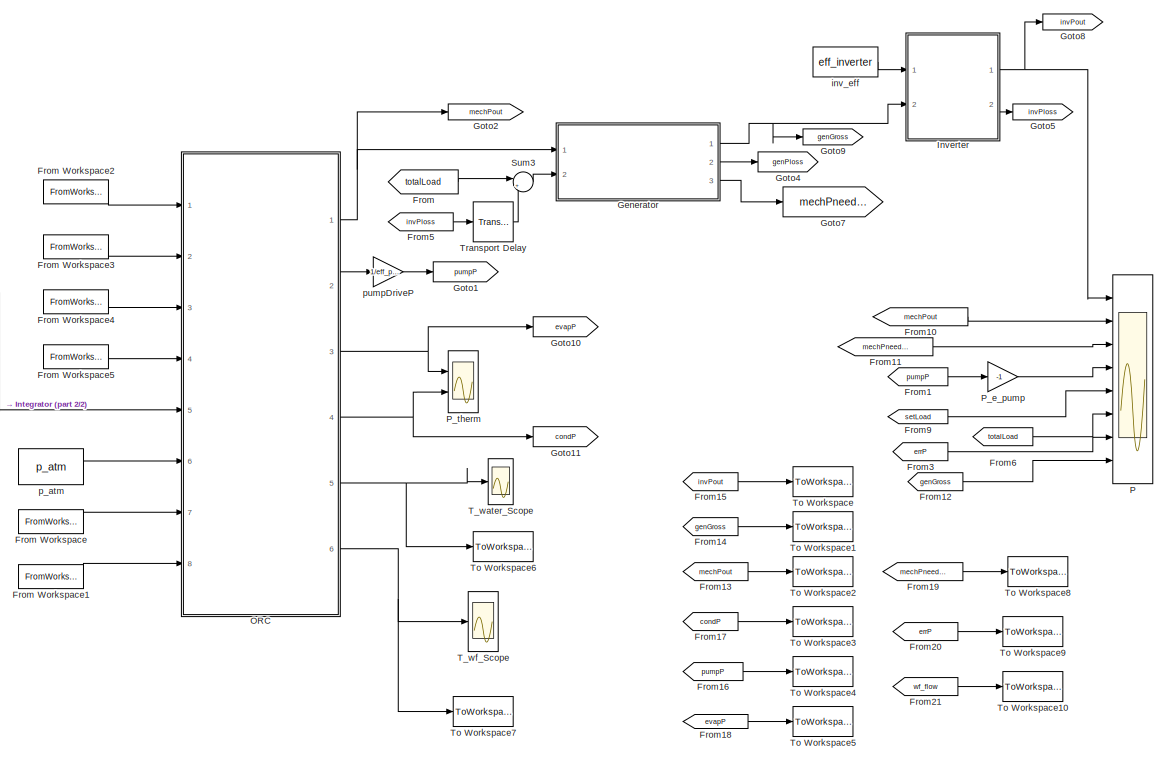
[diagram: root canvas - part 1/2, right side, full height]
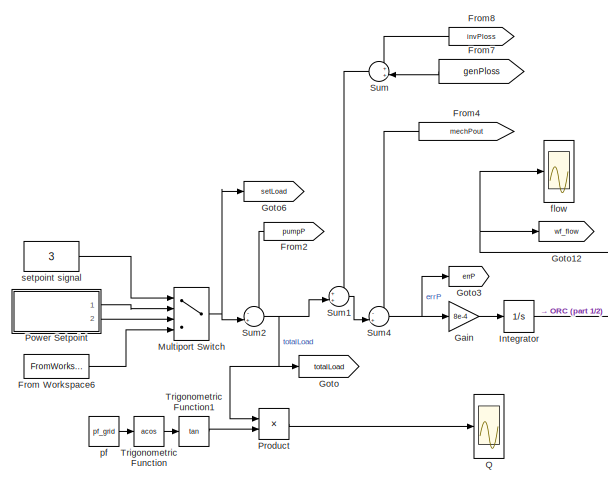
[diagram: root canvas - part 2/2, middle left region]
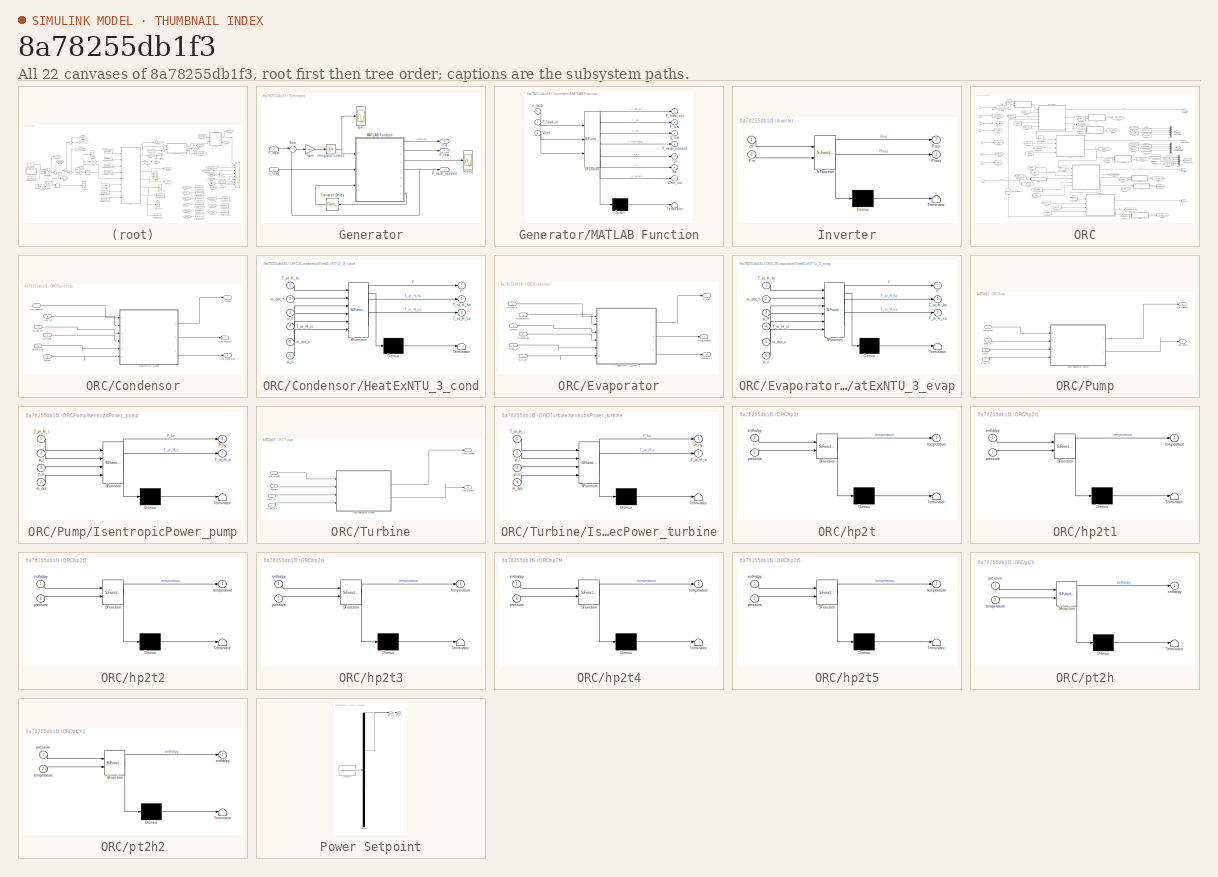
[diagram: thumbnail index - all 22 canvases of the model, root first then tree order]
MODEL slx_8a78255db1f3
KIND model
CONFIG AbsTol = auto
CONFIG EnableMultiTasking = off
CONFIG FixedStep = .1
CONFIG MaxStep = auto
CONFIG MinStep = auto
CONFIG RelTol = 1e-4
CONFIG SampleTimeConstraint = Unconstrained
CONFIG Solver = ode3
CONFIG SolverName = ode3
CONFIG StartTime = 0.0
CONFIG StopTime = 45
BLOCK [From] From
  GotoTag = totalLoad
BLOCK [FromWorkspace] From Workspace
  SampleTime = 0
  VariableName = p_hi
  ZeroCross = on
BLOCK [FromWorkspace] From Workspace1
  SampleTime = 0
  VariableName = p_low
  ZeroCross = on
BLOCK [FromWorkspace] From Workspace2
  SampleTime = 0
  VariableName = Tin_source
  ZeroCross = on
BLOCK [FromWorkspace] From Workspace3
  SampleTime = 0
  VariableName = Tin_sink
  ZeroCross = on
BLOCK [FromWorkspace] From Workspace4
  SampleTime = 0
  VariableName = m_dot_source
  ZeroCross = on
BLOCK [FromWorkspace] From Workspace5
  SampleTime = 0
  VariableName = m_dot_sink
  ZeroCross = on
BLOCK [FromWorkspace] From Workspace6
  SampleTime = 0
  VariableName = P_setpoint
  ZeroCross = on
BLOCK [From] From1
  GotoTag = pumpP
BLOCK [From] From10
  GotoTag = mechPout
BLOCK [From] From11
  GotoTag = mechPneeded
BLOCK [From] From12
  GotoTag = genGross
BLOCK [From] From13
  GotoTag = mechPout
BLOCK [From] From14
  GotoTag = genGross
BLOCK [From] From15
  GotoTag = invPout
BLOCK [From] From16
  GotoTag = pumpP
BLOCK [From] From17
  GotoTag = condP
BLOCK [From] From18
  GotoTag = evapP
BLOCK [From] From19
  GotoTag = mechPneeded
BLOCK [From] From2
  GotoTag = pumpP
BLOCK [From] From20
  GotoTag = errP
BLOCK [From] From21
  GotoTag = wf_flow
BLOCK [From] From3
  GotoTag = errP
BLOCK [From] From4
  GotoTag = mechPout
BLOCK [From] From5
  GotoTag = invPloss
BLOCK [From] From6
  GotoTag = totalLoad
BLOCK [From] From7
  GotoTag = genPloss
BLOCK [From] From8
  GotoTag = invPloss
BLOCK [From] From9
  GotoTag = setLoad
BLOCK [Gain] Gain
  Gain = 8e-4
  OutDataTypeStr = Inherit: Inherit via internal rule
  ParamDataTypeStr = Inherit: Inherit via internal rule
  SaturateOnIntegerOverflow = off
BLOCK [SubSystem] Generator
  Ports = [2, 3]
  RequestExecContextInheritance = off
BLOCK [Gain] Generator/Gain
  Gain = .005
  OutDataTypeStr = Inherit: Inherit via internal rule
  ParamDataTypeStr = Inherit: Inherit via internal rule
  SaturateOnIntegerOverflow = off
BLOCK [Integrator] Generator/Integrator Limited
  InitialCondition = n_mech_init
  LimitOutput = on
  LowerSaturationLimit = n_mech_min
  Ports = [1, 1]
  UpperSaturationLimit = n_mech_max
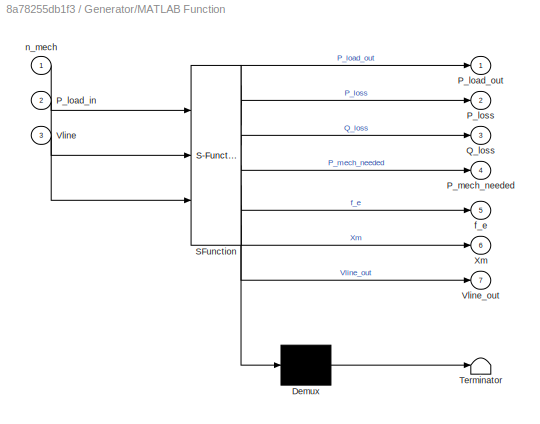
BLOCK [SubSystem] Generator/MATLAB Function
  ErrorFcn = Stateflow.Translate.translate
  PermitHierarchicalResolution = ExplicitOnly
  Ports = [3, 7]
  RequestExecContextInheritance = off
  SFBlockType = MATLAB Function
BLOCK [Demux] Generator/MATLAB Function/ Demux 
  Outputs = 1
  Ports = [1, 1]
BLOCK [S-Function] Generator/MATLAB Function/ SFunction 
  EnableBusSupport = on
  FunctionName = sf_sfun
  Parameters = Cx,K_b,K_w,L1,L2,R1,R2,f_rated,magCurveV,magCurveX,poles
  PortCounts = [3 8]
  Ports = [3, 8]
  SFcnIsStateOwnerBlock = off
  SFunctionDeploymentMode = off
  Tag = Stateflow S-Function ORC_test_simu_unregSCIG 16
BLOCK [Terminator] Generator/MATLAB Function/ Terminator 
BLOCK [Inport] Generator/MATLAB Function/P_load_in
  IconDisplay = Port number
  Port = 2
BLOCK [Outport] Generator/MATLAB Function/P_load_out
  IconDisplay = Port number
BLOCK [Outport] Generator/MATLAB Function/P_loss
  IconDisplay = Port number
  Port = 2
BLOCK [Outport] Generator/MATLAB Function/P_mech_needed
  IconDisplay = Port number
  Port = 4
BLOCK [Outport] Generator/MATLAB Function/Q_loss
  IconDisplay = Port number
  Port = 3
BLOCK [Inport] Generator/MATLAB Function/Vline
  IconDisplay = Port number
  Port = 3
BLOCK [Outport] Generator/MATLAB Function/Vline_out
  IconDisplay = Port number
  Port = 7
BLOCK [Outport] Generator/MATLAB Function/Xm
  IconDisplay = Port number
  Port = 6
BLOCK [Outport] Generator/MATLAB Function/f_e
  IconDisplay = Port number
  Port = 5
BLOCK [Inport] Generator/MATLAB Function/n_mech
  IconDisplay = Port number
BLOCK [Outport] Generator/P_e
  IconDisplay = Port number
BLOCK [Inport] Generator/P_load
  IconDisplay = Port number
  Port = 2
BLOCK [Outport] Generator/P_loss
  IconDisplay = Port number
  Port = 2
BLOCK [Inport] Generator/P_mech
  IconDisplay = Port number
BLOCK [Outport] Generator/P_mech_needed
  IconDisplay = Port number
  Port = 3
BLOCK [Scope] Generator/SCIG Q
  Floating = off
  NumInputPorts = 1
  Ports = [1]
  ScopeSpecificationString = Simulink.scopes.TimeScopeBlockCfg('CurrentConfiguration', extmgr.ConfigurationSet(extmgr.Configuration('Core','General UI',true),extmgr.Configuration('Core','Source UI',true),extmgr.Configuration('Sources','WiredSimulink',true,'DataLoggingVariableName','ScopeData1'),extmgr.Configuration('Visuals','Time Domain',true,'SerializedDisplays',{struct('MinYLimReal','17992.15223','MaxYLimReal','38222.03421...<+1839ch>
BLOCK [Sum] Generator/Sum
  IconShape = round
  InputSameDT = off
  Inputs = |-+
  OutDataTypeStr = Inherit: Inherit via internal rule
  Ports = [2, 1]
  SaturateOnIntegerOverflow = off
BLOCK [TransportDelay] Generator/Transport Delay
  DelayTime = .01
  InitialOutput = Vline_rated
  Ports = [1, 1]
BLOCK [Scope] Generator/rpm
  Floating = off
  NumInputPorts = 1
  Ports = [1]
  ScopeSpecificationString = Simulink.scopes.TimeScopeBlockCfg('CurrentConfiguration', extmgr.ConfigurationSet(extmgr.Configuration('Core','General UI',true),extmgr.Configuration('Core','Source UI',true),extmgr.Configuration('Sources','WiredSimulink',true,'DataLoggingVariableName','ScopeData1'),extmgr.Configuration('Visuals','Time Domain',true,'SerializedDisplays',{struct('MinYLimReal','1790.98667','MaxYLimReal','1881.11993',...<+1802ch>
BLOCK [Goto] Goto
  GotoTag = totalLoad
BLOCK [Goto] Goto1
  GotoTag = pumpP
BLOCK [Goto] Goto10
  GotoTag = evapP
BLOCK [Goto] Goto11
  GotoTag = condP
BLOCK [Goto] Goto12
  GotoTag = wf_flow
BLOCK [Goto] Goto2
  GotoTag = mechPout
BLOCK [Goto] Goto3
  GotoTag = errP
BLOCK [Goto] Goto4
  GotoTag = genPloss
BLOCK [Goto] Goto5
  GotoTag = invPloss
BLOCK [Goto] Goto6
  GotoTag = setLoad
BLOCK [Goto] Goto7
  GotoTag = mechPneeded
BLOCK [Goto] Goto8
  GotoTag = invPout
BLOCK [Goto] Goto9
  GotoTag = genGross
BLOCK [Integrator] Integrator
  InitialCondition = m_dot_wf_init
  LimitOutput = on
  LowerSaturationLimit = 0
  Ports = [1, 1]
  UpperSaturationLimit = m_dot_wf_max
BLOCK [SubSystem] Inverter
  ErrorFcn = Stateflow.Translate.translate
  PermitHierarchicalResolution = ExplicitOnly
  Ports = [2, 2]
  RequestExecContextInheritance = off
  SFBlockType = MATLAB Function
  TreatAsAtomicUnit = on
BLOCK [Demux] Inverter/ Demux 
  Outputs = 1
  Ports = [1, 1]
BLOCK [S-Function] Inverter/ SFunction 
  EnableBusSupport = on
  FunctionName = sf_sfun
  PortCounts = [2 3]
  Ports = [2, 3]
  SFcnIsStateOwnerBlock = off
  SFunctionDeploymentMode = off
  Tag = Stateflow S-Function ORC_test_simu_unregSCIG 14
BLOCK [Terminator] Inverter/ Terminator 
BLOCK [Inport] Inverter/Pin
  IconDisplay = Port number
  Port = 2
BLOCK [Outport] Inverter/Ploss
  IconDisplay = Port number
  Port = 2
BLOCK [Outport] Inverter/Pout
  IconDisplay = Port number
BLOCK [Inport] Inverter/eff
  IconDisplay = Port number
BLOCK [MultiPortSwitch] Multiport Switch
  InputSameDT = off
  Ports = [4, 1]
  SaturateOnIntegerOverflow = off
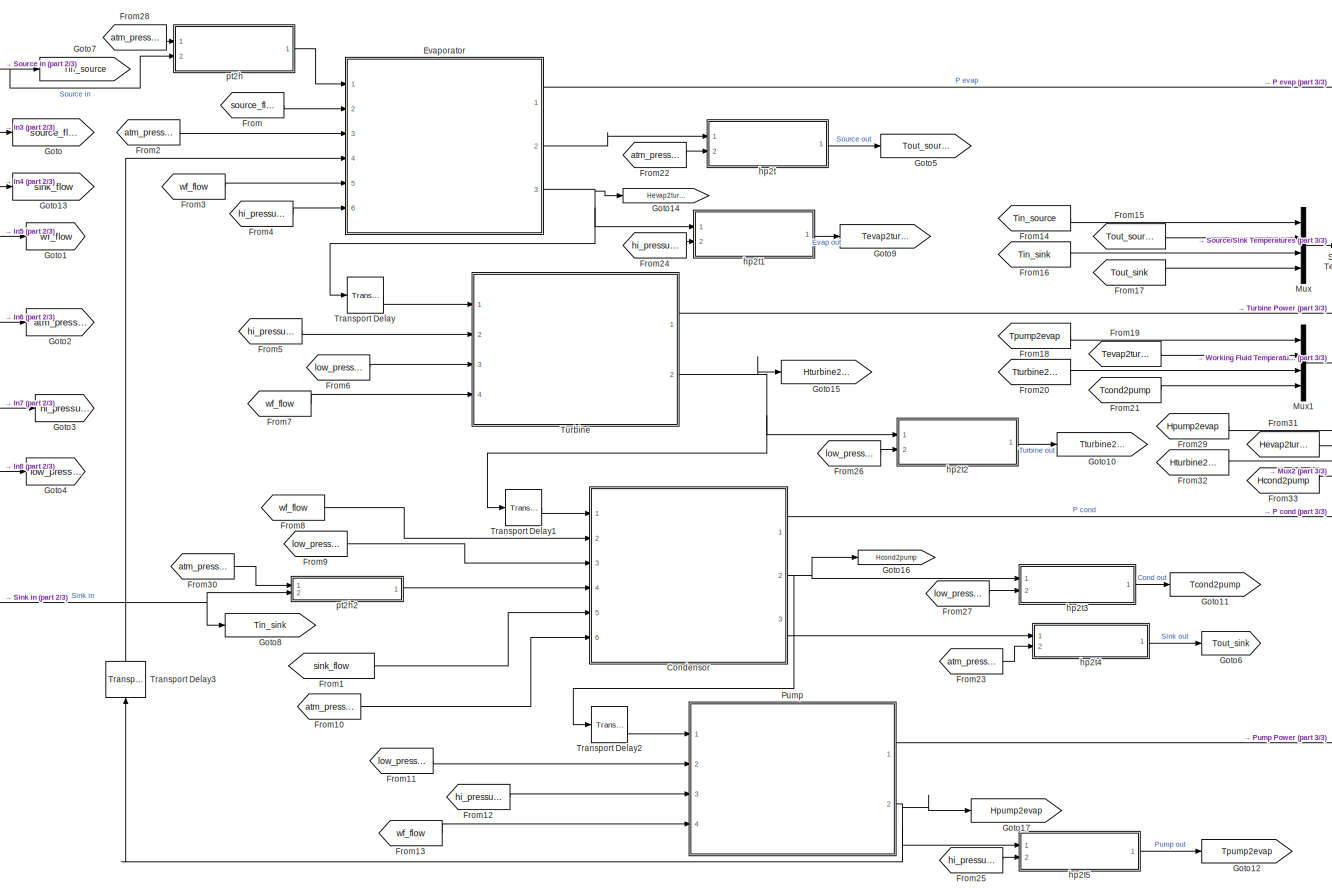
[diagram: ORC - part 1/3, most of the canvas]
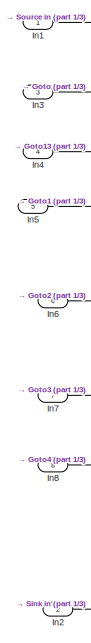
[diagram: ORC - part 2/3, middle left region]
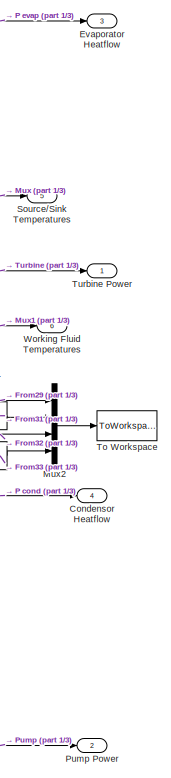
[diagram: ORC - part 3/3, right side, full height]
BLOCK [SubSystem] ORC
  Ports = [8, 6]
  RequestExecContextInheritance = off
BLOCK [SubSystem] ORC/Condensor
  Ports = [6, 3]
  RequestExecContextInheritance = off
BLOCK [Outport] ORC/Condensor Heatflow
  IconDisplay = Port number
  Port = 4
BLOCK [SubSystem] ORC/Condensor/HeatExNTU_3_cond
  Description = %HeatExNTU Summary \n%   This function calculates flow and outlet temperatures of a heat exchanger\n%   using the Number of Transfer Units (NTU) method as described in\n%   Fundementals of Heat and Mass Transfer by F. P. Incropera, D. P.\n%   DeWitt, T. L. Bergman & A. S. Lavine. The method can be used when only\n%   the inlet tempertures are known as opposed to inlet and outlet\n%   temperatures.\n%\n%  ...<+3098ch>
  ErrorFcn = Stateflow.Translate.translate
  PermitHierarchicalResolution = ExplicitOnly
  Ports = [6, 3]
  RequestExecContextInheritance = off
  SFBlockType = MATLAB Function
  TreatAsAtomicUnit = on
BLOCK [Demux] ORC/Condensor/HeatExNTU_3_cond/ Demux 
  Outputs = 1
  Ports = [1, 1]
BLOCK [S-Function] ORC/Condensor/HeatExNTU_3_cond/ SFunction 
  EnableBusSupport = on
  FunctionName = sf_sfun
  Parameters = A,HeatExType,T_or_H,U,fluid_c,fluid_h
  PortCounts = [6 4]
  Ports = [6, 4]
  SFcnIsStateOwnerBlock = off
  SFunctionDeploymentMode = off
  Tag = Stateflow S-Function ORC_test_simu_unregSCIG 3
BLOCK [Terminator] ORC/Condensor/HeatExNTU_3_cond/ Terminator 
BLOCK [Outport] ORC/Condensor/HeatExNTU_3_cond/P
  IconDisplay = Port number
BLOCK [Inport] ORC/Condensor/HeatExNTU_3_cond/T_or_H_ci
  IconDisplay = Port number
  Port = 4
BLOCK [Outport] ORC/Condensor/HeatExNTU_3_cond/T_or_H_co
  IconDisplay = Port number
  Port = 3
BLOCK [Inport] ORC/Condensor/HeatExNTU_3_cond/T_or_H_hi
  IconDisplay = Port number
BLOCK [Outport] ORC/Condensor/HeatExNTU_3_cond/T_or_H_ho
  IconDisplay = Port number
  Port = 2
BLOCK [Inport] ORC/Condensor/HeatExNTU_3_cond/m_dot_c
  IconDisplay = Port number
  Port = 5
BLOCK [Inport] ORC/Condensor/HeatExNTU_3_cond/m_dot_h
  IconDisplay = Port number
  Port = 2
BLOCK [Inport] ORC/Condensor/HeatExNTU_3_cond/p_c
  IconDisplay = Port number
  Port = 6
BLOCK [Inport] ORC/Condensor/HeatExNTU_3_cond/p_h
  IconDisplay = Port number
  Port = 3
BLOCK [Inport] ORC/Condensor/Hin_cond_wf
  IconDisplay = Port number
BLOCK [Inport] ORC/Condensor/Hin_sink
  IconDisplay = Port number
  Port = 4
BLOCK [Outport] ORC/Condensor/Hout_cond_sink
  IconDisplay = Port number
  Port = 3
BLOCK [Outport] ORC/Condensor/Hout_cond_wf
  IconDisplay = Port number
  Port = 2
BLOCK [Outport] ORC/Condensor/P_cond
  IconDisplay = Port number
BLOCK [Inport] ORC/Condensor/m_dot_sink
  IconDisplay = Port number
  Port = 5
BLOCK [Inport] ORC/Condensor/m_dot_wf
  IconDisplay = Port number
  Port = 2
BLOCK [Inport] ORC/Condensor/p_low_wf
  IconDisplay = Port number
  Port = 3
BLOCK [Inport] ORC/Condensor/p_sink
  IconDisplay = Port number
  Port = 6
BLOCK [SubSystem] ORC/Evaporator
  Ports = [6, 3]
  RequestExecContextInheritance = off
BLOCK [Outport] ORC/Evaporator Heatflow
  IconDisplay = Port number
  Port = 3
BLOCK [SubSystem] ORC/Evaporator/HeatExNTU_3_evap
  Description = %HeatExNTU Summary \n%   This function calculates flow and outlet temperatures of a heat exchanger\n%   using the Number of Transfer Units (NTU) method as described in\n%   Fundementals of Heat and Mass Transfer by F. P. Incropera, D. P.\n%   DeWitt, T. L. Bergman & A. S. Lavine. The method can be used when only\n%   the inlet tempertures are known as opposed to inlet and outlet\n%   temperatures.\n%\n%  ...<+3098ch>
  ErrorFcn = Stateflow.Translate.translate
  PermitHierarchicalResolution = ExplicitOnly
  Ports = [6, 3]
  RequestExecContextInheritance = off
  SFBlockType = MATLAB Function
  TreatAsAtomicUnit = on
BLOCK [Demux] ORC/Evaporator/HeatExNTU_3_evap/ Demux 
  Outputs = 1
  Ports = [1, 1]
BLOCK [S-Function] ORC/Evaporator/HeatExNTU_3_evap/ SFunction 
  EnableBusSupport = on
  FunctionName = sf_sfun
  Parameters = A,HeatExType,T_or_H,U,fluid_c,fluid_h
  PortCounts = [6 4]
  Ports = [6, 4]
  SFcnIsStateOwnerBlock = off
  SFunctionDeploymentMode = off
  Tag = Stateflow S-Function ORC_test_simu_unregSCIG 2
BLOCK [Terminator] ORC/Evaporator/HeatExNTU_3_evap/ Terminator 
BLOCK [Outport] ORC/Evaporator/HeatExNTU_3_evap/P
  IconDisplay = Port number
BLOCK [Inport] ORC/Evaporator/HeatExNTU_3_evap/T_or_H_ci
  IconDisplay = Port number
  Port = 4
BLOCK [Outport] ORC/Evaporator/HeatExNTU_3_evap/T_or_H_co
  IconDisplay = Port number
  Port = 3
BLOCK [Inport] ORC/Evaporator/HeatExNTU_3_evap/T_or_H_hi
  IconDisplay = Port number
BLOCK [Outport] ORC/Evaporator/HeatExNTU_3_evap/T_or_H_ho
  IconDisplay = Port number
  Port = 2
BLOCK [Inport] ORC/Evaporator/HeatExNTU_3_evap/m_dot_c
  IconDisplay = Port number
  Port = 5
BLOCK [Inport] ORC/Evaporator/HeatExNTU_3_evap/m_dot_h
  IconDisplay = Port number
  Port = 2
BLOCK [Inport] ORC/Evaporator/HeatExNTU_3_evap/p_c
  IconDisplay = Port number
  Port = 6
BLOCK [Inport] ORC/Evaporator/HeatExNTU_3_evap/p_h
  IconDisplay = Port number
  Port = 3
BLOCK [Outport] ORC/Evaporator/Hevap_source
  IconDisplay = Port number
  Port = 2
BLOCK [Outport] ORC/Evaporator/Hevap_wf
  IconDisplay = Port number
  Port = 3
BLOCK [Inport] ORC/Evaporator/Hin_evap_wf
  IconDisplay = Port number
  Port = 4
BLOCK [Inport] ORC/Evaporator/Hin_source
  IconDisplay = Port number
BLOCK [Outport] ORC/Evaporator/P_evap
  IconDisplay = Port number
BLOCK [Inport] ORC/Evaporator/m_dot_source
  IconDisplay = Port number
  Port = 2
BLOCK [Inport] ORC/Evaporator/m_dot_wf
  IconDisplay = Port number
  Port = 5
BLOCK [Inport] ORC/Evaporator/p_hi_wf
  IconDisplay = Port number
  Port = 6
BLOCK [Inport] ORC/Evaporator/p_source
  IconDisplay = Port number
  Port = 3
BLOCK [From] ORC/From
  GotoTag = source_flow
BLOCK [From] ORC/From1
  GotoTag = sink_flow
BLOCK [From] ORC/From10
  GotoTag = atm_pressure
BLOCK [From] ORC/From11
  GotoTag = low_pressure
BLOCK [From] ORC/From12
  GotoTag = hi_pressure
BLOCK [From] ORC/From13
  GotoTag = wf_flow
BLOCK [From] ORC/From14
  GotoTag = Tin_source
BLOCK [From] ORC/From15
  GotoTag = Tout_source
BLOCK [From] ORC/From16
  GotoTag = Tin_sink
BLOCK [From] ORC/From17
  GotoTag = Tout_sink
BLOCK [From] ORC/From18
  GotoTag = Tpump2evap
BLOCK [From] ORC/From19
  GotoTag = Tevap2turbine
BLOCK [From] ORC/From2
  GotoTag = atm_pressure
BLOCK [From] ORC/From20
  GotoTag = Tturbine2cond
BLOCK [From] ORC/From21
  GotoTag = Tcond2pump
BLOCK [From] ORC/From22
  GotoTag = atm_pressure
BLOCK [From] ORC/From23
  GotoTag = atm_pressure
BLOCK [From] ORC/From24
  GotoTag = hi_pressure
BLOCK [From] ORC/From25
  GotoTag = hi_pressure
BLOCK [From] ORC/From26
  GotoTag = low_pressure
BLOCK [From] ORC/From27
  GotoTag = low_pressure
BLOCK [From] ORC/From28
  GotoTag = atm_pressure
BLOCK [From] ORC/From29
  GotoTag = Hpump2evap
BLOCK [From] ORC/From3
  GotoTag = wf_flow
BLOCK [From] ORC/From30
  GotoTag = atm_pressure
BLOCK [From] ORC/From31
  GotoTag = Hevap2turbine
BLOCK [From] ORC/From32
  GotoTag = Hturbine2cond
BLOCK [From] ORC/From33
  GotoTag = Hcond2pump
BLOCK [From] ORC/From4
  GotoTag = hi_pressure
BLOCK [From] ORC/From5
  GotoTag = hi_pressure
BLOCK [From] ORC/From6
  GotoTag = low_pressure
BLOCK [From] ORC/From7
  GotoTag = wf_flow
BLOCK [From] ORC/From8
  GotoTag = wf_flow
BLOCK [From] ORC/From9
  GotoTag = low_pressure
BLOCK [Goto] ORC/Goto
  GotoTag = source_flow
BLOCK [Goto] ORC/Goto1
  GotoTag = wf_flow
BLOCK [Goto] ORC/Goto10
  GotoTag = Tturbine2cond
BLOCK [Goto] ORC/Goto11
  GotoTag = Tcond2pump
BLOCK [Goto] ORC/Goto12
  GotoTag = Tpump2evap
BLOCK [Goto] ORC/Goto13
  GotoTag = sink_flow
BLOCK [Goto] ORC/Goto14
  GotoTag = Hevap2turbine
BLOCK [Goto] ORC/Goto15
  GotoTag = Hturbine2cond
BLOCK [Goto] ORC/Goto16
  GotoTag = Hcond2pump
BLOCK [Goto] ORC/Goto17
  GotoTag = Hpump2evap
BLOCK [Goto] ORC/Goto2
  GotoTag = atm_pressure
BLOCK [Goto] ORC/Goto3
  GotoTag = hi_pressure
BLOCK [Goto] ORC/Goto4
  GotoTag = low_pressure
BLOCK [Goto] ORC/Goto5
  GotoTag = Tout_source
BLOCK [Goto] ORC/Goto6
  GotoTag = Tout_sink
BLOCK [Goto] ORC/Goto7
  GotoTag = Tin_source
BLOCK [Goto] ORC/Goto8
  GotoTag = Tin_sink
BLOCK [Goto] ORC/Goto9
  GotoTag = Tevap2turbine
BLOCK [Inport] ORC/In1
  IconDisplay = Port number
BLOCK [Inport] ORC/In2
  IconDisplay = Port number
  Port = 2
BLOCK [Inport] ORC/In3
  IconDisplay = Port number
  Port = 3
BLOCK [Inport] ORC/In4
  IconDisplay = Port number
  Port = 4
BLOCK [Inport] ORC/In5
  IconDisplay = Port number
  Port = 5
BLOCK [Inport] ORC/In6
  IconDisplay = Port number
  Port = 6
BLOCK [Inport] ORC/In7
  IconDisplay = Port number
  Port = 7
BLOCK [Inport] ORC/In8
  IconDisplay = Port number
  Port = 8
BLOCK [Mux] ORC/Mux
  DisplayOption = bar
  Ports = [4, 1]
BLOCK [Mux] ORC/Mux1
  DisplayOption = bar
  Ports = [4, 1]
BLOCK [Mux] ORC/Mux2
  DisplayOption = bar
  Ports = [4, 1]
BLOCK [SubSystem] ORC/Pump
  Ports = [4, 2]
  RequestExecContextInheritance = off
BLOCK [Outport] ORC/Pump Power
  IconDisplay = Port number
  Port = 2
BLOCK [Inport] ORC/Pump/Hin_pump
  IconDisplay = Port number
BLOCK [Outport] ORC/Pump/Hout_pump
  IconDisplay = Port number
  Port = 2
BLOCK [SubSystem] ORC/Pump/IsentropicPower_pump
  ErrorFcn = Stateflow.Translate.translate
  PermitHierarchicalResolution = ExplicitOnly
  Ports = [4, 2]
  RequestExecContextInheritance = off
  SFBlockType = MATLAB Function
  TreatAsAtomicUnit = on
BLOCK [Demux] ORC/Pump/IsentropicPower_pump/ Demux 
  Outputs = 1
  Ports = [1, 1]
BLOCK [S-Function] ORC/Pump/IsentropicPower_pump/ SFunction 
  EnableBusSupport = on
  FunctionName = sf_sfun
  Parameters = T_or_H,fluid,isen_eff
  PortCounts = [4 3]
  Ports = [4, 3]
  SFcnIsStateOwnerBlock = off
  SFunctionDeploymentMode = off
  Tag = Stateflow S-Function ORC_test_simu_unregSCIG 4
BLOCK [Terminator] ORC/Pump/IsentropicPower_pump/ Terminator 
BLOCK [Outport] ORC/Pump/IsentropicPower_pump/P_hy
  IconDisplay = Port number
BLOCK [Inport] ORC/Pump/IsentropicPower_pump/T_or_H_i
  IconDisplay = Port number
BLOCK [Outport] ORC/Pump/IsentropicPower_pump/T_or_H_o
  IconDisplay = Port number
  Port = 2
BLOCK [Inport] ORC/Pump/IsentropicPower_pump/m_dot
  IconDisplay = Port number
  Port = 4
BLOCK [Inport] ORC/Pump/IsentropicPower_pump/p_i
  IconDisplay = Port number
  Port = 2
BLOCK [Inport] ORC/Pump/IsentropicPower_pump/p_o
  IconDisplay = Port number
  Port = 3
BLOCK [Outport] ORC/Pump/P_hyd_pump
  IconDisplay = Port number
BLOCK [Inport] ORC/Pump/m_dot_wf
  IconDisplay = Port number
  Port = 4
BLOCK [Inport] ORC/Pump/p_hi_wf
  IconDisplay = Port number
  Port = 3
BLOCK [Inport] ORC/Pump/pi_low_wf
  IconDisplay = Port number
  Port = 2
BLOCK [Outport] ORC/Source//Sink Temperatures
  IconDisplay = Port number
  Port = 5
BLOCK [ToWorkspace] ORC/To Workspace
  FixptAsFi = on
  MaxDataPoints = inf
  Ports = [1]
  SampleTime = -1
  Save2DSignal = 3-D array (concatenate along third dimension)
  SaveFormat = Timeseries
  VariableName = H_wf
BLOCK [TransportDelay] ORC/Transport Delay
  Commented = through
  DelayTime = .01
  InitialOutput = 2.3e+05
  Ports = [1, 1]
BLOCK [TransportDelay] ORC/Transport Delay1
  Commented = through
  DelayTime = .01
  InitialOutput = 2.3e+05
  Ports = [1, 1]
BLOCK [TransportDelay] ORC/Transport Delay2
  Commented = through
  DelayTime = .01
  InitialOutput = 2.3e+05
  Ports = [1, 1]
BLOCK [TransportDelay] ORC/Transport Delay3
  DelayTime = .01
  InitialOutput = H_wf_init
  Ports = [1, 1]
  TransDelayFeedthrough = on
BLOCK [SubSystem] ORC/Turbine
  Ports = [4, 2]
  RequestExecContextInheritance = off
BLOCK [Outport] ORC/Turbine Power
  IconDisplay = Port number
BLOCK [Inport] ORC/Turbine/Hin_turbine
  IconDisplay = Port number
BLOCK [Outport] ORC/Turbine/Hout_turbine
  IconDisplay = Port number
  Port = 2
BLOCK [SubSystem] ORC/Turbine/IsentropicPower_turbine
  ErrorFcn = Stateflow.Translate.translate
  PermitHierarchicalResolution = ExplicitOnly
  Ports = [4, 2]
  RequestExecContextInheritance = off
  SFBlockType = MATLAB Function
  TreatAsAtomicUnit = on
BLOCK [Demux] ORC/Turbine/IsentropicPower_turbine/ Demux 
  Outputs = 1
  Ports = [1, 1]
BLOCK [S-Function] ORC/Turbine/IsentropicPower_turbine/ SFunction 
  EnableBusSupport = on
  FunctionName = sf_sfun
  Parameters = T_or_H,fluid,isen_eff
  PortCounts = [4 3]
  Ports = [4, 3]
  SFcnIsStateOwnerBlock = off
  SFunctionDeploymentMode = off
  Tag = Stateflow S-Function ORC_test_simu_unregSCIG 1
BLOCK [Terminator] ORC/Turbine/IsentropicPower_turbine/ Terminator 
BLOCK [Outport] ORC/Turbine/IsentropicPower_turbine/P_hy
  IconDisplay = Port number
BLOCK [Inport] ORC/Turbine/IsentropicPower_turbine/T_or_H_i
  IconDisplay = Port number
BLOCK [Outport] ORC/Turbine/IsentropicPower_turbine/T_or_H_o
  IconDisplay = Port number
  Port = 2
BLOCK [Inport] ORC/Turbine/IsentropicPower_turbine/m_dot
  IconDisplay = Port number
  Port = 4
BLOCK [Inport] ORC/Turbine/IsentropicPower_turbine/p_i
  IconDisplay = Port number
  Port = 2
BLOCK [Inport] ORC/Turbine/IsentropicPower_turbine/p_o
  IconDisplay = Port number
  Port = 3
BLOCK [Outport] ORC/Turbine/P_hyd_turbine
  IconDisplay = Port number
BLOCK [Inport] ORC/Turbine/m_dot_wf
  IconDisplay = Port number
  Port = 4
BLOCK [Inport] ORC/Turbine/p_low_wf
  IconDisplay = Port number
  Port = 3
BLOCK [Inport] ORC/Turbine/pi_hi_wf
  IconDisplay = Port number
  Port = 2
BLOCK [Outport] ORC/Working Fluid Temperatures
  IconDisplay = Port number
  Port = 6
BLOCK [SubSystem] ORC/hp2t
  ErrorFcn = Stateflow.Translate.translate
  PermitHierarchicalResolution = ExplicitOnly
  Ports = [2, 1]
  RequestExecContextInheritance = off
  SFBlockType = MATLAB Function
  TreatAsAtomicUnit = on
BLOCK [Demux] ORC/hp2t/ Demux 
  Outputs = 1
  Ports = [1, 1]
BLOCK [S-Function] ORC/hp2t/ SFunction 
  EnableBusSupport = on
  FunctionName = sf_sfun
  Parameters = fluid_handle
  PortCounts = [2 2]
  Ports = [2, 2]
  SFcnIsStateOwnerBlock = off
  SFunctionDeploymentMode = off
  Tag = Stateflow S-Function ORC_test_simu_unregSCIG 5
BLOCK [Terminator] ORC/hp2t/ Terminator 
BLOCK [Inport] ORC/hp2t/enthalpy
  IconDisplay = Port number
BLOCK [Inport] ORC/hp2t/pressure
  IconDisplay = Port number
  Port = 2
BLOCK [Outport] ORC/hp2t/temperature
  IconDisplay = Port number
BLOCK [SubSystem] ORC/hp2t1
  ErrorFcn = Stateflow.Translate.translate
  PermitHierarchicalResolution = ExplicitOnly
  Ports = [2, 1]
  RequestExecContextInheritance = off
  SFBlockType = MATLAB Function
  TreatAsAtomicUnit = on
BLOCK [Demux] ORC/hp2t1/ Demux 
  Outputs = 1
  Ports = [1, 1]
BLOCK [S-Function] ORC/hp2t1/ SFunction 
  EnableBusSupport = on
  FunctionName = sf_sfun
  Parameters = fluid_handle
  PortCounts = [2 2]
  Ports = [2, 2]
  SFcnIsStateOwnerBlock = off
  SFunctionDeploymentMode = off
  Tag = Stateflow S-Function ORC_test_simu_unregSCIG 6
BLOCK [Terminator] ORC/hp2t1/ Terminator 
BLOCK [Inport] ORC/hp2t1/enthalpy
  IconDisplay = Port number
BLOCK [Inport] ORC/hp2t1/pressure
  IconDisplay = Port number
  Port = 2
BLOCK [Outport] ORC/hp2t1/temperature
  IconDisplay = Port number
BLOCK [SubSystem] ORC/hp2t2
  ErrorFcn = Stateflow.Translate.translate
  PermitHierarchicalResolution = ExplicitOnly
  Ports = [2, 1]
  RequestExecContextInheritance = off
  SFBlockType = MATLAB Function
  TreatAsAtomicUnit = on
BLOCK [Demux] ORC/hp2t2/ Demux 
  Outputs = 1
  Ports = [1, 1]
BLOCK [S-Function] ORC/hp2t2/ SFunction 
  EnableBusSupport = on
  FunctionName = sf_sfun
  Parameters = fluid_handle
  PortCounts = [2 2]
  Ports = [2, 2]
  SFcnIsStateOwnerBlock = off
  SFunctionDeploymentMode = off
  Tag = Stateflow S-Function ORC_test_simu_unregSCIG 7
BLOCK [Terminator] ORC/hp2t2/ Terminator 
BLOCK [Inport] ORC/hp2t2/enthalpy
  IconDisplay = Port number
BLOCK [Inport] ORC/hp2t2/pressure
  IconDisplay = Port number
  Port = 2
BLOCK [Outport] ORC/hp2t2/temperature
  IconDisplay = Port number
BLOCK [SubSystem] ORC/hp2t3
  ErrorFcn = Stateflow.Translate.translate
  PermitHierarchicalResolution = ExplicitOnly
  Ports = [2, 1]
  RequestExecContextInheritance = off
  SFBlockType = MATLAB Function
  TreatAsAtomicUnit = on
BLOCK [Demux] ORC/hp2t3/ Demux 
  Outputs = 1
  Ports = [1, 1]
BLOCK [S-Function] ORC/hp2t3/ SFunction 
  EnableBusSupport = on
  FunctionName = sf_sfun
  Parameters = fluid_handle
  PortCounts = [2 2]
  Ports = [2, 2]
  SFcnIsStateOwnerBlock = off
  SFunctionDeploymentMode = off
  Tag = Stateflow S-Function ORC_test_simu_unregSCIG 8
BLOCK [Terminator] ORC/hp2t3/ Terminator 
BLOCK [Inport] ORC/hp2t3/enthalpy
  IconDisplay = Port number
BLOCK [Inport] ORC/hp2t3/pressure
  IconDisplay = Port number
  Port = 2
BLOCK [Outport] ORC/hp2t3/temperature
  IconDisplay = Port number
BLOCK [SubSystem] ORC/hp2t4
  ErrorFcn = Stateflow.Translate.translate
  PermitHierarchicalResolution = ExplicitOnly
  Ports = [2, 1]
  RequestExecContextInheritance = off
  SFBlockType = MATLAB Function
  TreatAsAtomicUnit = on
BLOCK [Demux] ORC/hp2t4/ Demux 
  Outputs = 1
  Ports = [1, 1]
BLOCK [S-Function] ORC/hp2t4/ SFunction 
  EnableBusSupport = on
  FunctionName = sf_sfun
  Parameters = fluid_handle
  PortCounts = [2 2]
  Ports = [2, 2]
  SFcnIsStateOwnerBlock = off
  SFunctionDeploymentMode = off
  Tag = Stateflow S-Function ORC_test_simu_unregSCIG 9
BLOCK [Terminator] ORC/hp2t4/ Terminator 
BLOCK [Inport] ORC/hp2t4/enthalpy
  IconDisplay = Port number
BLOCK [Inport] ORC/hp2t4/pressure
  IconDisplay = Port number
  Port = 2
BLOCK [Outport] ORC/hp2t4/temperature
  IconDisplay = Port number
BLOCK [SubSystem] ORC/hp2t5
  ErrorFcn = Stateflow.Translate.translate
  PermitHierarchicalResolution = ExplicitOnly
  Ports = [2, 1]
  RequestExecContextInheritance = off
  SFBlockType = MATLAB Function
  TreatAsAtomicUnit = on
BLOCK [Demux] ORC/hp2t5/ Demux 
  Outputs = 1
  Ports = [1, 1]
BLOCK [S-Function] ORC/hp2t5/ SFunction 
  EnableBusSupport = on
  FunctionName = sf_sfun
  Parameters = fluid_handle
  PortCounts = [2 2]
  Ports = [2, 2]
  SFcnIsStateOwnerBlock = off
  SFunctionDeploymentMode = off
  Tag = Stateflow S-Function ORC_test_simu_unregSCIG 10
BLOCK [Terminator] ORC/hp2t5/ Terminator 
BLOCK [Inport] ORC/hp2t5/enthalpy
  IconDisplay = Port number
BLOCK [Inport] ORC/hp2t5/pressure
  IconDisplay = Port number
  Port = 2
BLOCK [Outport] ORC/hp2t5/temperature
  IconDisplay = Port number
BLOCK [SubSystem] ORC/pt2h
  ErrorFcn = Stateflow.Translate.translate
  PermitHierarchicalResolution = ExplicitOnly
  Ports = [2, 1]
  RequestExecContextInheritance = off
  SFBlockType = MATLAB Function
  TreatAsAtomicUnit = on
BLOCK [Demux] ORC/pt2h/ Demux 
  Outputs = 1
  Ports = [1, 1]
BLOCK [S-Function] ORC/pt2h/ SFunction 
  EnableBusSupport = on
  FunctionName = sf_sfun
  Parameters = fluid_handle
  PortCounts = [2 2]
  Ports = [2, 2]
  SFcnIsStateOwnerBlock = off
  SFunctionDeploymentMode = off
  Tag = Stateflow S-Function ORC_test_simu_unregSCIG 11
BLOCK [Terminator] ORC/pt2h/ Terminator 
BLOCK [Outport] ORC/pt2h/enthalpy
  IconDisplay = Port number
BLOCK [Inport] ORC/pt2h/pressure
  IconDisplay = Port number
BLOCK [Inport] ORC/pt2h/temperature
  IconDisplay = Port number
  Port = 2
BLOCK [SubSystem] ORC/pt2h2
  ErrorFcn = Stateflow.Translate.translate
  PermitHierarchicalResolution = ExplicitOnly
  Ports = [2, 1]
  RequestExecContextInheritance = off
  SFBlockType = MATLAB Function
  TreatAsAtomicUnit = on
BLOCK [Demux] ORC/pt2h2/ Demux 
  Outputs = 1
  Ports = [1, 1]
BLOCK [S-Function] ORC/pt2h2/ SFunction 
  EnableBusSupport = on
  FunctionName = sf_sfun
  Parameters = fluid_handle
  PortCounts = [2 2]
  Ports = [2, 2]
  SFcnIsStateOwnerBlock = off
  SFunctionDeploymentMode = off
  Tag = Stateflow S-Function ORC_test_simu_unregSCIG 13
BLOCK [Terminator] ORC/pt2h2/ Terminator 
BLOCK [Outport] ORC/pt2h2/enthalpy
  IconDisplay = Port number
BLOCK [Inport] ORC/pt2h2/pressure
  IconDisplay = Port number
BLOCK [Inport] ORC/pt2h2/temperature
  IconDisplay = Port number
  Port = 2
BLOCK [Scope] P
  Floating = off
  NumInputPorts = 8
  Ports = [8]
  ScopeSpecificationString = Simulink.scopes.TimeScopeBlockCfg('CurrentConfiguration', extmgr.ConfigurationSet(extmgr.Configuration('Core','General UI',true),extmgr.Configuration('Core','Source UI',true),extmgr.Configuration('Sources','WiredSimulink',true,'DataLoggingVariableName','ScopeData1'),extmgr.Configuration('Visuals','Time Domain',true,'SerializedDisplays',{struct('MinYLimReal','-1345.19539','MaxYLimReal','1868.01149'...<+1804ch>
BLOCK [Gain] P_e_pump
  Gain = -1
  OutDataTypeStr = Inherit: Inherit via internal rule
  ParamDataTypeStr = Inherit: Inherit via internal rule
  SaturateOnIntegerOverflow = off
BLOCK [Scope] P_therm
  Floating = off
  NumInputPorts = 2
  Ports = [2]
  ScopeSpecificationString = Simulink.scopes.TimeScopeBlockCfg('CurrentConfiguration', extmgr.ConfigurationSet(extmgr.Configuration('Core','General UI',true),extmgr.Configuration('Core','Source UI',true),extmgr.Configuration('Sources','WiredSimulink',true),extmgr.Configuration('Visuals','Time Domain',true,'SerializedDisplays',{struct('MinYLimReal','272633.02508','MaxYLimReal','847977.63864','YLabelReal','','MinYLimMag','27263...<+1756ch>
BLOCK [SubSystem] Power Setpoint
  ClipboardFcn = sigbuilder_block('clipboard');
  CloseFcn = sigbuilder_block('close');
  ContinueFcn = sigbuilder_block('continue');
  CopyFcn = sigbuilder_block('copy');
  DeleteFcn = sigbuilder_block('delete');
  LoadFcn = sigbuilder_block('load');
  MaskHideContents = on
  ModelCloseFcn = sigbuilder_block('modelClose');
  NameChangeFcn = sigbuilder_block('namechange');
  OpenFcn = sigbuilder_block('open',[474 237.75 544.5 274.5 ]);
  PauseFcn = sigbuilder_block('pause');
  Ports = [0, 2]
  PreSaveFcn = sigbuilder_block('preSave');
  RequestExecContextInheritance = off
  StartFcn = sigbuilder_block('start');
  StopFcn = sigbuilder_block('stop');
  Tag = STV Subsys
BLOCK [Demux] Power Setpoint/Demux
  Outputs = 2
  Ports = [1, 2]
  Tag = STV Demux
BLOCK [FromWorkspace] Power Setpoint/FromWs
  SampleTime = 0
  Tag = STV FromWs
  VariableName = tuvar
  ZeroCross = on
BLOCK [Outport] Power Setpoint/Signal 1
  IconDisplay = Port number
  Tag = STV Outport
BLOCK [Outport] Power Setpoint/Signal 2
  IconDisplay = Port number
  Port = 2
  Tag = STV Outport
BLOCK [Product] Product
  InputSameDT = off
  OutDataTypeStr = Inherit: Inherit via internal rule
  Ports = [2, 1]
  RndMeth = Floor
  SaturateOnIntegerOverflow = off
BLOCK [Scope] Q
  Floating = off
  NumInputPorts = 1
  Ports = [1]
  ScopeSpecificationString = Simulink.scopes.TimeScopeBlockCfg('CurrentConfiguration', extmgr.ConfigurationSet(extmgr.Configuration('Core','General UI',true),extmgr.Configuration('Core','Source UI',true),extmgr.Configuration('Sources','WiredSimulink',true,'DataLoggingVariableName','ScopeData1'),extmgr.Configuration('Visuals','Time Domain',true,'SerializedDisplays',{struct('MinYLimReal','-4174.85654','MaxYLimReal','37573.70889...<+1815ch>
BLOCK [Sum] Sum
  IconShape = round
  InputSameDT = off
  Inputs = ++|
  OutDataTypeStr = Inherit: Inherit via internal rule
  Ports = [2, 1]
  SaturateOnIntegerOverflow = off
BLOCK [Sum] Sum1
  IconShape = round
  InputSameDT = off
  Inputs = ++|
  OutDataTypeStr = Inherit: Inherit via internal rule
  Ports = [2, 1]
  SaturateOnIntegerOverflow = off
BLOCK [Sum] Sum2
  IconShape = round
  InputSameDT = off
  Inputs = -+|
  OutDataTypeStr = Inherit: Inherit via internal rule
  Ports = [2, 1]
  SaturateOnIntegerOverflow = off
BLOCK [Sum] Sum3
  IconShape = round
  InputSameDT = off
  Inputs = |++
  OutDataTypeStr = Inherit: Inherit via internal rule
  Ports = [2, 1]
  SaturateOnIntegerOverflow = off
BLOCK [Sum] Sum4
  IconShape = round
  InputSameDT = off
  Inputs = -+|
  OutDataTypeStr = Inherit: Inherit via internal rule
  Ports = [2, 1]
  SaturateOnIntegerOverflow = off
BLOCK [Scope] T_water_Scope
  Floating = off
  NumInputPorts = 1
  Ports = [1]
  ScopeSpecificationString = Simulink.scopes.TimeScopeBlockCfg('CurrentConfiguration', extmgr.ConfigurationSet(extmgr.Configuration('Core','General UI',true),extmgr.Configuration('Core','Source UI',true),extmgr.Configuration('Sources','WiredSimulink',true,'DataLoggingVariableName','ScopeData1'),extmgr.Configuration('Visuals','Time Domain',true,'SerializedDisplays',{struct('MinYLimReal','265.675','MaxYLimReal','375.425','YLabe...<+1782ch>
BLOCK [Scope] T_wf_Scope
  Floating = off
  NumInputPorts = 1
  Ports = [1]
  ScopeSpecificationString = Simulink.scopes.TimeScopeBlockCfg('CurrentConfiguration', extmgr.ConfigurationSet(extmgr.Configuration('Core','General UI',true),extmgr.Configuration('Core','Source UI',true),extmgr.Configuration('Sources','WiredSimulink',true,'DataLoggingVariableName','ScopeData2'),extmgr.Configuration('Visuals','Time Domain',true,'SerializedDisplays',{struct('MinYLimReal','271.76803','MaxYLimReal','373.90881','Y...<+1798ch>
BLOCK [ToWorkspace] To Workspace
  FixptAsFi = on
  MaxDataPoints = inf
  Ports = [1]
  SampleTime = -1
  Save2DSignal = 3-D array (concatenate along third dimension)
  SaveFormat = Timeseries
  VariableName = invPout
BLOCK [ToWorkspace] To Workspace1
  FixptAsFi = on
  MaxDataPoints = inf
  Ports = [1]
  SampleTime = -1
  Save2DSignal = 3-D array (concatenate along third dimension)
  SaveFormat = Timeseries
  VariableName = genPout
BLOCK [ToWorkspace] To Workspace10
  FixptAsFi = on
  MaxDataPoints = inf
  Ports = [1]
  SampleTime = -1
  Save2DSignal = 3-D array (concatenate along third dimension)
  SaveFormat = Timeseries
  VariableName = wf_flow
BLOCK [ToWorkspace] To Workspace2
  FixptAsFi = on
  MaxDataPoints = inf
  Ports = [1]
  SampleTime = -1
  Save2DSignal = 3-D array (concatenate along third dimension)
  SaveFormat = Timeseries
  VariableName = mechPout
BLOCK [ToWorkspace] To Workspace3
  FixptAsFi = on
  MaxDataPoints = inf
  Ports = [1]
  SampleTime = -1
  Save2DSignal = 3-D array (concatenate along third dimension)
  SaveFormat = Timeseries
  VariableName = condPout
BLOCK [ToWorkspace] To Workspace4
  FixptAsFi = on
  MaxDataPoints = inf
  Ports = [1]
  SampleTime = -1
  Save2DSignal = 3-D array (concatenate along third dimension)
  SaveFormat = Timeseries
  VariableName = pumpPin
BLOCK [ToWorkspace] To Workspace5
  FixptAsFi = on
  MaxDataPoints = inf
  Ports = [1]
  SampleTime = -1
  Save2DSignal = 3-D array (concatenate along third dimension)
  SaveFormat = Timeseries
  VariableName = evapPin
BLOCK [ToWorkspace] To Workspace6
  FixptAsFi = on
  MaxDataPoints = inf
  Ports = [1]
  SampleTime = -1
  Save2DSignal = 3-D array (concatenate along third dimension)
  SaveFormat = Timeseries
  VariableName = T_water
BLOCK [ToWorkspace] To Workspace7
  FixptAsFi = on
  MaxDataPoints = inf
  Ports = [1]
  SampleTime = -1
  Save2DSignal = 3-D array (concatenate along third dimension)
  SaveFormat = Timeseries
  VariableName = T_wf
BLOCK [ToWorkspace] To Workspace8
  FixptAsFi = on
  MaxDataPoints = inf
  Ports = [1]
  SampleTime = -1
  Save2DSignal = 3-D array (concatenate along third dimension)
  SaveFormat = Timeseries
  VariableName = mechPneeded
BLOCK [ToWorkspace] To Workspace9
  FixptAsFi = on
  MaxDataPoints = inf
  Ports = [1]
  SampleTime = -1
  Save2DSignal = 3-D array (concatenate along third dimension)
  SaveFormat = Timeseries
  VariableName = errP
BLOCK [TransportDelay] Transport Delay
  DelayTime = .01
  Ports = [1, 1]
BLOCK [Trigonometry] Trigonometric Function
  Operator = acos
  Ports = [1, 1]
BLOCK [Trigonometry] Trigonometric Function1
  Operator = tan
  Ports = [1, 1]
BLOCK [Scope] flow
  Floating = off
  NumInputPorts = 1
  Ports = [1]
  ScopeSpecificationString = Simulink.scopes.TimeScopeBlockCfg('CurrentConfiguration', extmgr.ConfigurationSet(extmgr.Configuration('Core','General UI',true),extmgr.Configuration('Core','Source UI',true),extmgr.Configuration('Sources','WiredSimulink',true,'DataLoggingVariableName','ScopeData1'),extmgr.Configuration('Visuals','Time Domain',true,'SerializedDisplays',{struct('MinYLimReal','0.62293','MaxYLimReal','9.36568','YLabe...<+1755ch>
BLOCK [Constant] inv_eff
  Value = eff_inverter
BLOCK [Constant] p_atm
  Value = p_atm
BLOCK [Constant] pf
  Value = pf_grid
BLOCK [Gain] pumpDriveP
  Gain = 1/eff_pumpdrive
  OutDataTypeStr = Inherit: Inherit via internal rule
  ParamDataTypeStr = Inherit: Inherit via internal rule
  SaturateOnIntegerOverflow = off
BLOCK [Constant] setpoint signal
  Value = 3
LINE From Workspace1:1 -> ORC:8
LINE From Workspace2:1 -> ORC:1
LINE From Workspace3:1 -> ORC:2
LINE From Workspace4:1 -> ORC:3
LINE From Workspace5:1 -> ORC:4
LINE From Workspace6:1 -> Multiport Switch:4
LINE From Workspace:1 -> ORC:7
LINE From10:1 -> P:2
LINE From11:1 -> P:3
LINE From12:1 -> P:8
LINE From13:1 -> To Workspace2:1
LINE From14:1 -> To Workspace1:1
LINE From15:1 -> To Workspace:1
LINE From16:1 -> To Workspace4:1
LINE From17:1 -> To Workspace3:1
LINE From18:1 -> To Workspace5:1
LINE From19:1 -> To Workspace8:1
LINE From1:1 -> P_e_pump:1
LINE From20:1 -> To Workspace9:1
LINE From21:1 -> To Workspace10:1
LINE From2:1 -> Sum2:1
LINE From3:1 -> P:7
LINE From4:1 -> Sum4:1
LINE From5:1 -> Transport Delay:1
LINE From6:1 -> P:6
LINE From7:1 -> Sum:2
LINE From8:1 -> Sum:1
LINE From9:1 -> P:5
LINE From:1 -> Sum3:1
LINE Gain:1 -> Integrator:1
LINE Generator/Gain:1 -> Generator/Integrator Limited:1
NET Generator/Integrator Limited:1 -> Generator/MATLAB Function:1, Generator/rpm:1
LINE Generator/MATLAB Function:1 -> Generator/P_e:1
LINE Generator/MATLAB Function:2 -> Generator/P_loss:1
LINE Generator/MATLAB Function:3 -> Generator/SCIG Q:1
NET Generator/MATLAB Function:4 -> Generator/P_mech_needed:1, Generator/Sum:2
LINE Generator/MATLAB Function:7 -> Generator/Transport Delay:1
LINE Generator/P_load:1 -> Generator/MATLAB Function:2
LINE Generator/P_mech:1 -> Generator/Sum:1
LINE Generator/Sum:1 -> Generator/Gain:1
LINE Generator/Transport Delay:1 -> Generator/MATLAB Function:3
NET Generator:1 -> Goto9:1, Inverter:2
LINE Generator:2 -> Goto4:1
LINE Generator:3 -> Goto7:1
NET Integrator:1 -> Goto12:1, ORC:5, flow:1
NET Inverter:1 -> Goto8:1, P:1
LINE Inverter:2 -> Goto5:1
NET Multiport Switch:1 -> Goto6:1, Sum2:2
LINE ORC/Condensor/HeatExNTU_3_cond:1 -> ORC/Condensor/P_cond:1
LINE ORC/Condensor/HeatExNTU_3_cond:2 -> ORC/Condensor/Hout_cond_wf:1
LINE ORC/Condensor/HeatExNTU_3_cond:3 -> ORC/Condensor/Hout_cond_sink:1
LINE ORC/Condensor/Hin_cond_wf:1 -> ORC/Condensor/HeatExNTU_3_cond:1
LINE ORC/Condensor/Hin_sink:1 -> ORC/Condensor/HeatExNTU_3_cond:4
LINE ORC/Condensor/m_dot_sink:1 -> ORC/Condensor/HeatExNTU_3_cond:5
LINE ORC/Condensor/m_dot_wf:1 -> ORC/Condensor/HeatExNTU_3_cond:2
LINE ORC/Condensor/p_low_wf:1 -> ORC/Condensor/HeatExNTU_3_cond:3
LINE ORC/Condensor/p_sink:1 -> ORC/Condensor/HeatExNTU_3_cond:6
LINE ORC/Condensor:1 -> ORC/Condensor Heatflow:1
NET ORC/Condensor:2 -> ORC/Goto16:1, ORC/Transport Delay2:1, ORC/hp2t3:1
LINE ORC/Condensor:3 -> ORC/hp2t4:1
LINE ORC/Evaporator/HeatExNTU_3_evap:1 -> ORC/Evaporator/P_evap:1
LINE ORC/Evaporator/HeatExNTU_3_evap:2 -> ORC/Evaporator/Hevap_source:1
LINE ORC/Evaporator/HeatExNTU_3_evap:3 -> ORC/Evaporator/Hevap_wf:1
LINE ORC/Evaporator/Hin_evap_wf:1 -> ORC/Evaporator/HeatExNTU_3_evap:4
LINE ORC/Evaporator/Hin_source:1 -> ORC/Evaporator/HeatExNTU_3_evap:1
LINE ORC/Evaporator/m_dot_source:1 -> ORC/Evaporator/HeatExNTU_3_evap:2
LINE ORC/Evaporator/m_dot_wf:1 -> ORC/Evaporator/HeatExNTU_3_evap:5
LINE ORC/Evaporator/p_hi_wf:1 -> ORC/Evaporator/HeatExNTU_3_evap:6
LINE ORC/Evaporator/p_source:1 -> ORC/Evaporator/HeatExNTU_3_evap:3
LINE ORC/Evaporator:1 -> ORC/Evaporator Heatflow:1
LINE ORC/Evaporator:2 -> ORC/hp2t:1
NET ORC/Evaporator:3 -> ORC/Goto14:1, ORC/Transport Delay:1, ORC/hp2t1:1
LINE ORC/From10:1 -> ORC/Condensor:6
LINE ORC/From11:1 -> ORC/Pump:2
LINE ORC/From12:1 -> ORC/Pump:3
LINE ORC/From13:1 -> ORC/Pump:4
LINE ORC/From14:1 -> ORC/Mux:1
LINE ORC/From15:1 -> ORC/Mux:2
LINE ORC/From16:1 -> ORC/Mux:3
LINE ORC/From17:1 -> ORC/Mux:4
LINE ORC/From18:1 -> ORC/Mux1:1
LINE ORC/From19:1 -> ORC/Mux1:2
LINE ORC/From1:1 -> ORC/Condensor:5
LINE ORC/From20:1 -> ORC/Mux1:3
LINE ORC/From21:1 -> ORC/Mux1:4
LINE ORC/From22:1 -> ORC/hp2t:2
LINE ORC/From23:1 -> ORC/hp2t4:2
LINE ORC/From24:1 -> ORC/hp2t1:2
LINE ORC/From25:1 -> ORC/hp2t5:2
LINE ORC/From26:1 -> ORC/hp2t2:2
LINE ORC/From27:1 -> ORC/hp2t3:2
LINE ORC/From28:1 -> ORC/pt2h:1
LINE ORC/From29:1 -> ORC/Mux2:1
LINE ORC/From2:1 -> ORC/Evaporator:3
LINE ORC/From30:1 -> ORC/pt2h2:1
LINE ORC/From31:1 -> ORC/Mux2:2
LINE ORC/From32:1 -> ORC/Mux2:3
LINE ORC/From33:1 -> ORC/Mux2:4
LINE ORC/From3:1 -> ORC/Evaporator:5
LINE ORC/From4:1 -> ORC/Evaporator:6
LINE ORC/From5:1 -> ORC/Turbine:2
LINE ORC/From6:1 -> ORC/Turbine:3
LINE ORC/From7:1 -> ORC/Turbine:4
LINE ORC/From8:1 -> ORC/Condensor:2
LINE ORC/From9:1 -> ORC/Condensor:3
LINE ORC/From:1 -> ORC/Evaporator:2
NET ORC/In1:1 -> ORC/Goto7:1, ORC/pt2h:2
NET ORC/In2:1 -> ORC/Goto8:1, ORC/pt2h2:2
LINE ORC/In3:1 -> ORC/Goto:1
LINE ORC/In4:1 -> ORC/Goto13:1
LINE ORC/In5:1 -> ORC/Goto1:1
LINE ORC/In6:1 -> ORC/Goto2:1
LINE ORC/In7:1 -> ORC/Goto3:1
LINE ORC/In8:1 -> ORC/Goto4:1
LINE ORC/Mux1:1 -> ORC/Working Fluid Temperatures:1
LINE ORC/Mux2:1 -> ORC/To Workspace:1
LINE ORC/Mux:1 -> ORC/Source//Sink Temperatures:1
LINE ORC/Pump/Hin_pump:1 -> ORC/Pump/IsentropicPower_pump:1
LINE ORC/Pump/IsentropicPower_pump:1 -> ORC/Pump/P_hyd_pump:1
LINE ORC/Pump/IsentropicPower_pump:2 -> ORC/Pump/Hout_pump:1
LINE ORC/Pump/m_dot_wf:1 -> ORC/Pump/IsentropicPower_pump:4
LINE ORC/Pump/p_hi_wf:1 -> ORC/Pump/IsentropicPower_pump:3
LINE ORC/Pump/pi_low_wf:1 -> ORC/Pump/IsentropicPower_pump:2
LINE ORC/Pump:1 -> ORC/Pump Power:1
NET ORC/Pump:2 -> ORC/Goto17:1, ORC/Transport Delay3:1, ORC/hp2t5:1
LINE ORC/Transport Delay1:1 -> ORC/Condensor:1
LINE ORC/Transport Delay2:1 -> ORC/Pump:1
LINE ORC/Transport Delay3:1 -> ORC/Evaporator:4
LINE ORC/Transport Delay:1 -> ORC/Turbine:1
LINE ORC/Turbine/Hin_turbine:1 -> ORC/Turbine/IsentropicPower_turbine:1
LINE ORC/Turbine/IsentropicPower_turbine:1 -> ORC/Turbine/P_hyd_turbine:1
LINE ORC/Turbine/IsentropicPower_turbine:2 -> ORC/Turbine/Hout_turbine:1
LINE ORC/Turbine/m_dot_wf:1 -> ORC/Turbine/IsentropicPower_turbine:4
LINE ORC/Turbine/p_low_wf:1 -> ORC/Turbine/IsentropicPower_turbine:3
LINE ORC/Turbine/pi_hi_wf:1 -> ORC/Turbine/IsentropicPower_turbine:2
LINE ORC/Turbine:1 -> ORC/Turbine Power:1
NET ORC/Turbine:2 -> ORC/Goto15:1, ORC/Transport Delay1:1, ORC/hp2t2:1
LINE ORC/hp2t1:1 -> ORC/Goto9:1
LINE ORC/hp2t2:1 -> ORC/Goto10:1
LINE ORC/hp2t3:1 -> ORC/Goto11:1
LINE ORC/hp2t4:1 -> ORC/Goto6:1
LINE ORC/hp2t5:1 -> ORC/Goto12:1
LINE ORC/hp2t:1 -> ORC/Goto5:1
LINE ORC/pt2h2:1 -> ORC/Condensor:4
LINE ORC/pt2h:1 -> ORC/Evaporator:1
NET ORC:1 -> Generator:1, Goto2:1
LINE ORC:2 -> pumpDriveP:1
NET ORC:3 -> Goto10:1, P_therm:1
NET ORC:4 -> Goto11:1, P_therm:2
NET ORC:5 -> T_water_Scope:1, To Workspace6:1
NET ORC:6 -> T_wf_Scope:1, To Workspace7:1
LINE P_e_pump:1 -> P:4
LINE Power Setpoint:1 -> Multiport Switch:2
LINE Power Setpoint:2 -> Multiport Switch:3
LINE Product:1 -> Q:1
LINE Sum1:1 -> Sum4:2
NET Sum2:1 -> Goto:1, Product:1, Sum1:2
LINE Sum3:1 -> Generator:2
NET Sum4:1 -> Gain:1, Goto3:1
LINE Sum:1 -> Sum1:1
LINE Transport Delay:1 -> Sum3:2
LINE Trigonometric Function1:1 -> Product:2
LINE Trigonometric Function:1 -> Trigonometric Function1:1
LINE inv_eff:1 -> Inverter:1
LINE p_atm:1 -> ORC:6
LINE pf:1 -> Trigonometric Function:1
LINE pumpDriveP:1 -> Goto1:1
LINE setpoint signal:1 -> Multiport Switch:1
note: NET lines group one-source signal fan-out (src -> all destinations, sorted); 1:1 wires keep LINE
CHART ORC/Turbine/IsentropicPower_turbine states=1 transitions=1
  STATE_LABEL 'eML_blk_kernel()'
  STATE_LABEL 'SCRIPT:\nfunction [ P_hy, T_or_H_o ] = IsentropicPower_block( T_or_H_i, p_i, p_o, m_dot, T_or_H,  isen_eff, fluid)\n% function [ P_hy ] = IsentropicPower( T_i, T_o, p_i, p_o, m_dot, fluid, isen_eff )\n%EXPANDER Summary of this function\n%   This process calculates the mechanical power provided or required by a \n%   generic expander device/system. Turbines and other expanders provide\n%   mechanical pow...<+3608ch>'
CHART ORC/Evaporator/HeatExNTU_3_evap states=1 transitions=1
  STATE_LABEL 'eML_blk_kernel()'
  STATE_LABEL 'SCRIPT:\nfunction [ P, T_or_H_ho, T_or_H_co ] = HeatExNTU_3_block( T_or_H_hi, m_dot_h, p_h,  ...\n    T_or_H_ci, m_dot_c, p_c, fluid_h, fluid_c, HeatExType, U, A, T_or_H )\n\n%HeatExNTU Summary \n%   This function calculates flow and outlet temperatures of a heat exchanger\n%   using the Number of Transfer Units (NTU) method as described in\n%   Fundementals of Heat and Mass Transfer by F. P. Incropera, ...<+3608ch>'
CHART ORC/Condensor/HeatExNTU_3_cond states=1 transitions=1
  STATE_LABEL 'eML_blk_kernel()'
  STATE_LABEL 'SCRIPT:\nfunction [ P, T_or_H_ho, T_or_H_co ] = HeatExNTU_3_block( T_or_H_hi, m_dot_h, p_h,  ...\n    T_or_H_ci, m_dot_c, p_c, fluid_h, fluid_c, HeatExType, U, A, T_or_H )\n\n%HeatExNTU Summary \n%   This function calculates flow and outlet temperatures of a heat exchanger\n%   using the Number of Transfer Units (NTU) method as described in\n%   Fundementals of Heat and Mass Transfer by F. P. Incropera, ...<+3608ch>'
CHART ORC/Pump/IsentropicPower_pump states=1 transitions=1
  STATE_LABEL 'eML_blk_kernel()'
  STATE_LABEL 'SCRIPT:\nfunction [ P_hy, T_or_H_o ] = IsentropicPower_block( T_or_H_i, p_i, p_o, m_dot, T_or_H,  isen_eff, fluid)\n% function [ P_hy ] = IsentropicPower( T_i, T_o, p_i, p_o, m_dot, fluid, isen_eff )\n%EXPANDER Summary of this function\n%   This process calculates the mechanical power provided or required by a \n%   generic expander device/system. Turbines and other expanders provide\n%   mechanical pow...<+3608ch>'
CHART ORC/hp2t states=1 transitions=1
  STATE_LABEL 'eML_blk_kernel()'
  STATE_LABEL 'SCRIPT:\nfunction temperature  = hp2t(enthalpy,pressure, fluid_handle)\n%HP2T Summary of this function goes here\n%   This function takes caluculates the temperature of a fluid based off of\n%   its enthalpy and pressure using the Cool Prob library. The fluid handle\n%   must already be generated and input in order to calculate the output\n%   values.\n\nbuffer_size = 255;\nierr = 0;\nb = (1:1:buffer_size);...<+674ch>'  <repeated x6 — deduplicated; at blocks: hp2t, hp2t1, hp2t2, hp2t3, hp2t4, hp2t5>
CHART ORC/hp2t1 states=1 transitions=1
  STATE_LABEL 'eML_blk_kernel()'
CHART ORC/hp2t2 states=1 transitions=1
  STATE_LABEL 'eML_blk_kernel()'
CHART ORC/hp2t3 states=1 transitions=1
  STATE_LABEL 'eML_blk_kernel()'
CHART ORC/hp2t4 states=1 transitions=1
  STATE_LABEL 'eML_blk_kernel()'
CHART ORC/hp2t5 states=1 transitions=1
  STATE_LABEL 'eML_blk_kernel()'
CHART ORC/pt2h states=1 transitions=1
  STATE_LABEL 'eML_blk_kernel()'
  STATE_LABEL 'SCRIPT:\nfunction enthalpy  = pt2h(fluid_handle,pressure,temperature)\n%PT2H Summary of this function goes here\n%   This function takes caluculates the enthalpy of a fluid based off of\n%   its temperature and pressure using the Cool Prob library. The fluid \n%   handle must already be generated and input in order to calculate the \n%   output values.\n\nbuffer_size = 255;\nierr = 0;\nb = (1:1:buffer_size)...<+667ch>'
CHART ORC/pt2h2 states=1 transitions=1
  STATE_LABEL 'eML_blk_kernel()'
  STATE_LABEL 'SCRIPT:\nfunction enthalpy  = pt2h(fluid_handle,pressure,temperature)\n%PT2H Summary of this function goes here\n%   This function takes caluculates the enthalpy of a fluid based off of\n%   its temperature and pressure using the Cool Prob library. The fluid \n%   handle must already be generated and input in order to calculate the \n%   output values.\n\nbuffer_size = 255;\nierr = 0;\nb = (1:1:buffer_size)...<+667ch>'
CHART Inverter states=1 transitions=1
  STATE_LABEL 'eML_blk_kernel()'
  STATE_LABEL 'SCRIPT:\nfunction [ Pout, Ploss ] = Inverter_Simple(eff, Pin)\n% function [ Pdc, Ploss ] = Voltage_Source_Inverter_Simple(Pload, Qload, Vdc, Vac, eff, method_flag )\n                            \n%INVERTER Summary of this function goes here\n%   This function simulates a very simple three phase voltage source \n%   inverter for an energy balance microgrid model. For a given load, input\n%   and output vo...<+282ch>'
CHART Generator/MATLAB Function states=1 transitions=1
  STATE_LABEL 'eML_blk_kernel()'
  STATE_LABEL 'SCRIPT:\nfunction [ P_load_out, P_loss, Q_loss, P_mech_needed, f_e, Xm, Vline_out] = SCIG_Ouazenne_it( n_mech, P_load_in, Vline, f_rated, poles, K_b, K_w, R1, L1, R2, L2, Cx, magCurveX, magCurveV)\n%SCIG_ENERGY_BALANCE Summary of this function goes here \n%   This function calcluates the active power (P_loss) losses of a 3-phase \n%   squirrel cage induction generator (SCIG). Also calclulated is the\n%...<+3608ch>'
